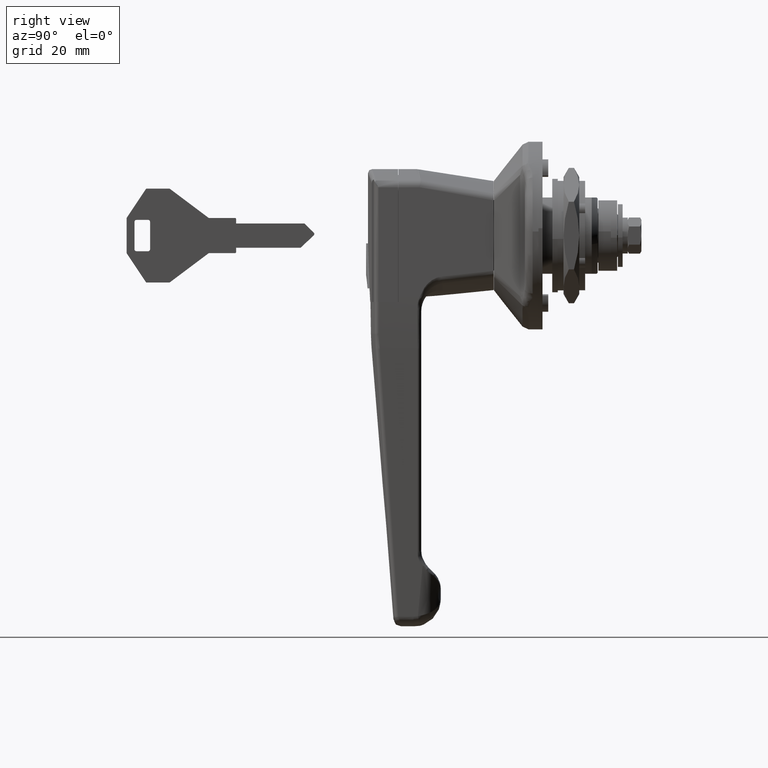
[diagram: clean part render]
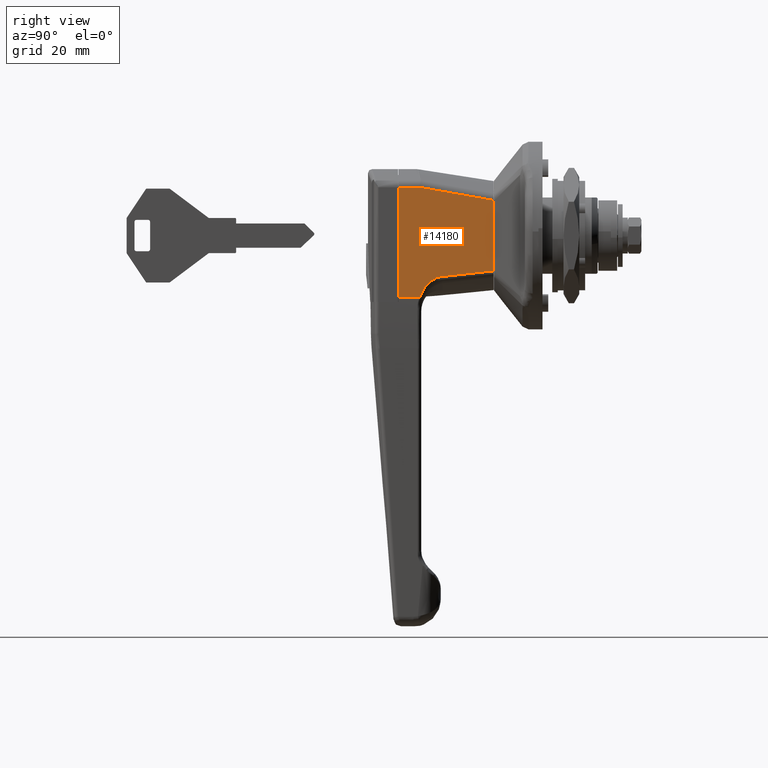
[diagram: same view with one face highlighted and labeled with its STEP entity id]
A machine part, right view. The second image highlights one B-rep face of the part: STEP entity #14180.
In plain terms, the highlighted face is a freeform B-spline surface patch.
Its self-contained STEP definition (entity closure, byte-faithful):
#7737=CARTESIAN_POINT('',(-31.440940997918950,-12.500000000000000,-15.848482385090501));
#7738=VERTEX_POINT('',#7737);
#7834=CARTESIAN_POINT('',(-25.758472494422051,-12.500000000000000,-10.478856147320160));
#7835=VERTEX_POINT('',#7834);
#7845=CARTESIAN_POINT('',(-31.440940997918950,-12.500000000000000,-15.848482385090501));
#7846=CARTESIAN_POINT('',(-30.979988675841451,-12.500000000000000,-14.646180813896020));
#7847=CARTESIAN_POINT('',(-30.473664453535601,-12.500000000000000,-13.790848530223940));
#7848=CARTESIAN_POINT('',(-29.837339934701749,-12.500000000000000,-12.715907060168011));
#7849=CARTESIAN_POINT('',(-29.023392715503451,-12.500000000000000,-11.987795283148969));
#7850=CARTESIAN_POINT('',(-27.557166121364201,-12.500000000000000,-10.676190764096980));
#7851=CARTESIAN_POINT('',(-25.758472494422051,-12.500000000000000,-10.478856147320160));
#7852=B_SPLINE_CURVE_WITH_KNOTS('',2,(#7845,#7846,#7847,#7848,#7849,#7850,#7851),.UNSPECIFIED.,.F.,.U.,(3,2,2,3),(0.0,0.285714285714285,0.571428571428571,1.0),.UNSPECIFIED.);
#7853=EDGE_CURVE('',#7738,#7835,#7852,.T.);
#7899=CARTESIAN_POINT('',(-12.500000000000000,-12.500000000000000,-9.011410562829580));
#7900=VERTEX_POINT('',#7899);
#7923=CARTESIAN_POINT('',(-25.758472494422051,-12.500000000000000,-10.478856147320160));
#7924=CARTESIAN_POINT('',(-21.338430364427531,-12.500000000000000,-9.994688639473512));
#7925=CARTESIAN_POINT('',(-16.918892132413252,-12.500000000000000,-9.505968378474428));
#7926=CARTESIAN_POINT('',(-12.500000000000000,-12.500000000000000,-9.011410562829610));
#7927=QUASI_UNIFORM_CURVE('',3,(#7923,#7924,#7925,#7926),.UNSPECIFIED.,.F.,.U.);
#7928=EDGE_CURVE('',#7835,#7900,#7927,.T.);
#10560=CARTESIAN_POINT('',(-31.397209567573899,-12.500000000000000,12.332614929181361));
#10561=VERTEX_POINT('',#10560);
#10735=CARTESIAN_POINT('',(-36.799999999999997,-12.500000000000000,12.332614929181361));
#10736=VERTEX_POINT('',#10735);
#10752=CARTESIAN_POINT('',(-31.397209567573899,-12.500000000000000,12.332614929181361));
#10753=CARTESIAN_POINT('',(-36.799999999999997,-12.500000000000000,12.332614929181361));
#10754=QUASI_UNIFORM_CURVE('',1,(#10752,#10753),.UNSPECIFIED.,.F.,.U.);
#10755=EDGE_CURVE('',#10561,#10736,#10754,.T.);
#10806=CARTESIAN_POINT('',(-12.500000000000000,-12.500000000000000,8.994391568174329));
#10807=VERTEX_POINT('',#10806);
#10838=CARTESIAN_POINT('',(-12.500000000000000,-12.500000000000000,8.994391568174329));
#10839=CARTESIAN_POINT('',(-15.647261801285509,-12.500000000000000,9.563549309966065));
#10840=CARTESIAN_POINT('',(-18.795878208128990,-12.500000000000000,10.125120313855019));
#10841=CARTESIAN_POINT('',(-25.095151901635049,-12.500000000000000,11.236831968208319));
#10842=CARTESIAN_POINT('',(-28.245791829742721,-12.500000000000000,11.786949721337299));
#10843=CARTESIAN_POINT('',(-31.397209567573899,-12.500000000000000,12.332614929181380));
#10844=B_SPLINE_CURVE_WITH_KNOTS('',3,(#10838,#10839,#10840,#10841,#10842,#10843),.UNSPECIFIED.,.F.,.U.,(4,2,4),(0.0,0.500000000000000,1.0),.UNSPECIFIED.);
#10845=EDGE_CURVE('',#10807,#10561,#10844,.T.);
#13690=CARTESIAN_POINT('',(-12.500000000000000,-12.500000000000000,-9.011410562829580));
#13691=CARTESIAN_POINT('',(-12.500000000000000,-12.500000000000000,8.994391568174329));
#13692=QUASI_UNIFORM_CURVE('',1,(#13690,#13691),.UNSPECIFIED.,.F.,.U.);
#13693=EDGE_CURVE('',#7900,#10807,#13692,.T.);
#13851=CARTESIAN_POINT('',(-36.799999999999997,-12.500000000000000,-15.848482385090399));
#13852=VERTEX_POINT('',#13851);
#13853=CARTESIAN_POINT('',(-31.440940997918950,-12.500000000000000,-15.848482385090501));
#13854=CARTESIAN_POINT('',(-36.799999999999997,-12.500000000000000,-15.848482385090399));
#13855=QUASI_UNIFORM_CURVE('',1,(#13853,#13854),.UNSPECIFIED.,.F.,.U.);
#13856=EDGE_CURVE('',#7738,#13852,#13855,.T.);
#14136=CARTESIAN_POINT('',(-36.799999999999997,-12.500000000000000,-15.848482385090399));
#14137=CARTESIAN_POINT('',(-36.799999999999997,-12.500000000000000,12.332614929181361));
#14138=QUASI_UNIFORM_CURVE('',1,(#14136,#14137),.UNSPECIFIED.,.F.,.U.);
#14139=EDGE_CURVE('',#13852,#10736,#14138,.T.);
#14166=CARTESIAN_POINT('',(-38.013784268568841,-12.500000000000000,-17.256127876773970));
#14167=CARTESIAN_POINT('',(-38.013784268568841,-12.500000000000000,13.740261428699400));
#14168=CARTESIAN_POINT('',(-11.286214427877569,-12.500000000000000,-17.256127876773970));
#14169=CARTESIAN_POINT('',(-11.286214427877569,-12.500000000000000,13.740261428699400));
#14170=B_SPLINE_SURFACE_WITH_KNOTS('',1,1,((#14166,#14168),(#14167,#14169)),.UNSPECIFIED.,.F.,.F.,.U.,(2,2),(2,2),(0.0,30.996389305473372),(0.0,26.727569840691270),.UNSPECIFIED.);
#14171=ORIENTED_EDGE('',*,*,#13856,.F.);
#14172=ORIENTED_EDGE('',*,*,#7853,.T.);
#14173=ORIENTED_EDGE('',*,*,#7928,.T.);
#14174=ORIENTED_EDGE('',*,*,#13693,.T.);
#14175=ORIENTED_EDGE('',*,*,#10845,.T.);
#14176=ORIENTED_EDGE('',*,*,#10755,.T.);
#14177=ORIENTED_EDGE('',*,*,#14139,.F.);
#14178=EDGE_LOOP('',(#14171,#14172,#14173,#14174,#14175,#14176,#14177));
#14179=FACE_OUTER_BOUND('',#14178,.T.);
#14180=ADVANCED_FACE('',(#14179),#14170,.F.);